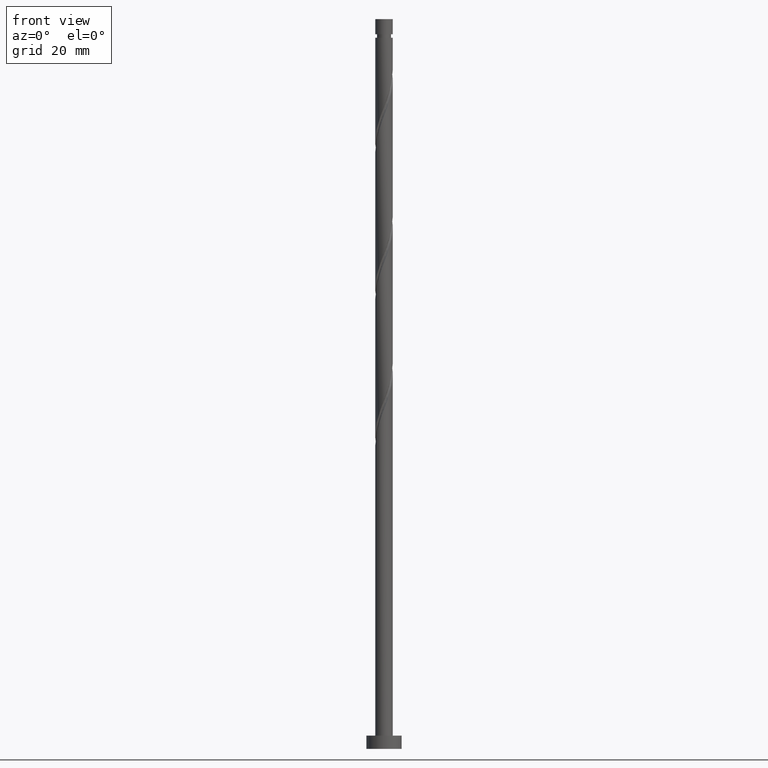
[diagram: clean part render]
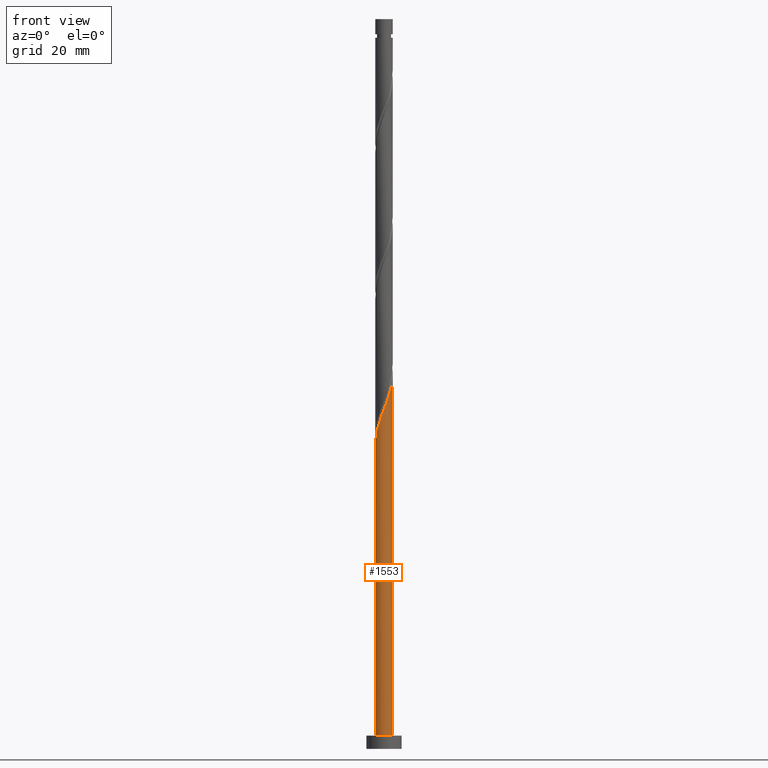
[diagram: same view with one face highlighted and labeled with its STEP entity id]
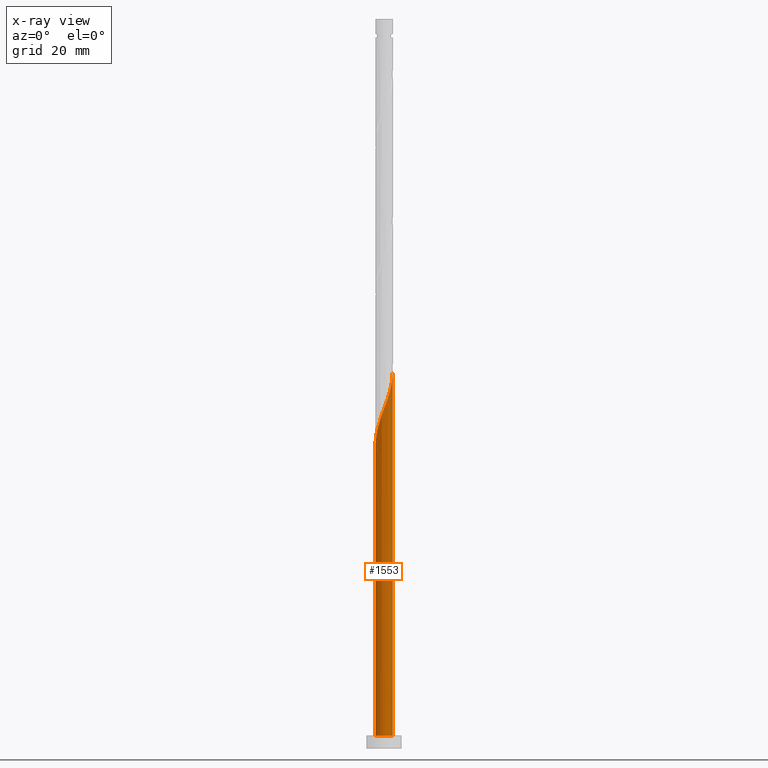
[diagram: x-ray of the same camera — body ghosted, the highlighted face saturated]
A machine part, front view. The second image highlights one B-rep face of the part: STEP entity #1553.
The next image is the same camera in x-ray: the body ghosted, the highlighted face saturated — about 0% of this face is hidden behind the body in this view.
In plain terms, the highlighted cylindrical surface (edge-blend (fillet) strip) has radius 2 mm, axis along (-0, -0, -1).
Its self-contained STEP definition (entity closure, byte-faithful):
#102 = CARTESIAN_POINT ( 'NONE',  ( -0.1228517034671596508, -1.996223298870952290, 76.83975284784916937 ) ) ;
#120 = CARTESIAN_POINT ( 'NONE',  ( 0.1399560795713515327, -2.012397032465270463, 77.53419729229361224 ) ) ;
#122 = EDGE_CURVE ( 'NONE', #1189, #1703, #1707, .T. ) ;
#139 = CARTESIAN_POINT ( 'NONE',  ( 1.324673758792282996, -1.498412303996178530, 81.00641951451585498 ) ) ;
#207 = CARTESIAN_POINT ( 'NONE',  ( 2.000000000000000000, 2.449293598294706414E-16, 165.8000000000000114 ) ) ;
#225 = CARTESIAN_POINT ( 'NONE',  ( 2.000000000000002665, -8.972270666171985530E-17, 85.49840841486135901 ) ) ;
#234 = CARTESIAN_POINT ( 'NONE',  ( 2.000000000000002665, -8.972270666171985530E-17, 85.49840841486135901 ) ) ;
#253 = CARTESIAN_POINT ( 'NONE',  ( -1.104504345536228671, -1.667354236715041127, 74.06197507007138370 ) ) ;
#262 = CARTESIAN_POINT ( 'NONE',  ( -2.000000000000003109, -1.136487617715118118E-15, 68.83174174819468760 ) ) ;
#366 = CARTESIAN_POINT ( 'NONE',  ( 0.000000000000000000, 0.000000000000000000, 165.8000000000000114 ) ) ;
#373 = CARTESIAN_POINT ( 'NONE',  ( 1.980049565276634782, -0.3856594865056718335, 84.47864173673806931 ) ) ;
#385 = CARTESIAN_POINT ( 'NONE',  ( 0.3979949748426483414, -1.960000000000003073, 78.22864173673805510 ) ) ;
#403 = CARTESIAN_POINT ( 'NONE',  ( 0.6560338701139444284, -1.907602967534735683, 78.92308618118249797 ) ) ;
#408 = CARTESIAN_POINT ( 'NONE',  ( 0.000000000000000000, 0.000000000000000000, 3.000000000000000000 ) ) ;
#410 = CARTESIAN_POINT ( 'NONE',  ( -1.672808912829666150, -1.127404036555502254, 71.97864173673806931 ) ) ;
#445 = EDGE_CURVE ( 'NONE', #1189, #669, #1678, .T. ) ;
#488 = CARTESIAN_POINT ( 'NONE',  ( 2.000000000000000000, 2.449293598294706414E-16, 3.000000000000000000 ) ) ;
#510 = CARTESIAN_POINT ( 'NONE',  ( 1.896407278838826205, -0.6353262412077200771, 83.78419729229364066 ) ) ;
#546 = DIRECTION ( 'NONE',  ( 1.000000000000000000, 0.000000000000000000, 0.000000000000000000 ) ) ;
#550 = ORIENTED_EDGE ( 'NONE', *, *, #445, .T. ) ;
#669 = VERTEX_POINT ( 'NONE', #1313 ) ;
#743 = EDGE_CURVE ( 'NONE', #669, #1203, #1434, .T. ) ;
#750 = DIRECTION ( 'NONE',  ( -0.000000000000000000, -0.000000000000000000, -1.000000000000000000 ) ) ;
#784 = DIRECTION ( 'NONE',  ( -1.000000000000000000, 0.000000000000000000, 0.000000000000000000 ) ) ;
#800 = CARTESIAN_POINT ( 'NONE',  ( -1.324015695162691131, -1.521943481029064404, 73.36753062562695504 ) ) ;
#815 = CARTESIAN_POINT ( 'NONE',  ( -0.3856594865056708343, -1.980049565276635226, 76.14530840340475493 ) ) ;
#903 = DIRECTION ( 'NONE',  ( -0.000000000000000000, -0.000000000000000000, -1.000000000000000000 ) ) ;
#909 = CARTESIAN_POINT ( 'NONE',  ( 1.996223298870952290, -0.1228517034671606500, 85.17308618118251218 ) ) ;
#1042 = CARTESIAN_POINT ( 'NONE',  ( 1.667354236715040461, -1.104504345536229781, 82.39530840340475493 ) ) ;
#1069 = CARTESIAN_POINT ( 'NONE',  ( -1.498412303996178307, -1.324673758792283218, 72.67308618118252639 ) ) ;
#1095 = ORIENTED_EDGE ( 'NONE', *, *, #743, .T. ) ;
#1172 = CARTESIAN_POINT ( 'NONE',  ( 1.521943481029064404, -1.324015695162691131, 81.70086395896031206 ) ) ;
#1189 = VERTEX_POINT ( 'NONE', #1535 ) ;
#1194 = EDGE_CURVE ( 'NONE', #1703, #1203, #1691, .T. ) ;
#1203 = VERTEX_POINT ( 'NONE', #488 ) ;
#1227 = ORIENTED_EDGE ( 'NONE', *, *, #122, .F. ) ;
#1287 = ORIENTED_EDGE ( 'NONE', *, *, #1194, .F. ) ;
#1313 = CARTESIAN_POINT ( 'NONE',  ( -2.000000000000000000, 0.000000000000000000, 3.000000000000000000 ) ) ;
#1333 = CARTESIAN_POINT ( 'NONE',  ( -0.8849929959097680987, -1.812764992401018072, 74.75641951451585498 ) ) ;
#1341 = CARTESIAN_POINT ( 'NONE',  ( -2.000000000000002665, -0.2010075630518454448, 69.36516811738397337 ) ) ;
#1353 = CARTESIAN_POINT ( 'NONE',  ( 1.127404036555501587, -1.672808912829666150, 80.31197507007144054 ) ) ;
#1434 = CIRCLE ( 'NONE', #1662, 2.000000000000000000 ) ;
#1446 = CARTESIAN_POINT ( 'NONE',  ( 2.000000000000003109, -0.06148390331534360487, 85.33524472683320994 ) ) ;
#1476 = CARTESIAN_POINT ( 'NONE',  ( 0.8917189533347230634, -1.790205940182200806, 79.61753062562694083 ) ) ;
#1485 = CARTESIAN_POINT ( 'NONE',  ( -0.6353262412077199661, -1.896407278838826205, 75.45086395896029785 ) ) ;
#1518 = AXIS2_PLACEMENT_3D ( 'NONE', #366, #903, #784 ) ;
#1524 = VECTOR ( 'NONE', #750, 1000.000000000000000 ) ;
#1535 = CARTESIAN_POINT ( 'NONE',  ( -2.000000000000003109, -1.136487617715118118E-15, 68.83174174819468760 ) ) ;
#1547 = CARTESIAN_POINT ( 'NONE',  ( -2.000000000000000000, 0.000000000000000000, 165.8000000000000114 ) ) ;
#1553 = ADVANCED_FACE ( 'NONE', ( #1706 ), #1577, .T. ) ;
#1560 = DIRECTION ( 'NONE',  ( -0.000000000000000000, -0.000000000000000000, -1.000000000000000000 ) ) ;
#1577 = CYLINDRICAL_SURFACE ( 'NONE', #1518, 2.000000000000000000 ) ;
#1585 = CARTESIAN_POINT ( 'NONE',  ( -1.790205940182200361, -0.8917189533347235075, 71.28419729229362645 ) ) ;
#1593 = CARTESIAN_POINT ( 'NONE',  ( -1.960000000000003073, -0.3979949748426484524, 69.89530840340472650 ) ) ;
#1619 = CARTESIAN_POINT ( 'NONE',  ( -1.907602967534735683, -0.6560338701139445394, 70.58975284784919779 ) ) ;
#1662 = AXIS2_PLACEMENT_3D ( 'NONE', #408, #1750, #546 ) ;
#1671 = EDGE_LOOP ( 'NONE', ( #1287, #1227, #550, #1095 ) ) ;
#1678 = LINE ( 'NONE', #1547, #1524 ) ;
#1691 = LINE ( 'NONE', #207, #1719 ) ;
#1703 = VERTEX_POINT ( 'NONE', #225 ) ;
#1706 = FACE_OUTER_BOUND ( 'NONE', #1671, .T. ) ;
#1707 =( BOUNDED_CURVE ( )  B_SPLINE_CURVE ( 2, ( #262, #1341, #1593, #1619, #1585, #410, #1069, #800, #253, #1333, #1485, #815, #102, #120, #385, #403, #1476, #1353, #139, #1172, #1042, #1715, #510, #373, #909, #1446, #234 ),
 .UNSPECIFIED., .F., .T. ) 
 B_SPLINE_CURVE_WITH_KNOTS ( ( 3, 2, 2, 2, 2, 2, 2, 2, 2, 2, 2, 2, 2, 3 ),
 ( 0.05453176698144644036, 0.06250000000000000000, 0.07291666666666662966, 0.08333333333333337034, 0.09375000000000000000, 0.1041666666666666297, 0.1145833333333333703, 0.1250000000000000000, 0.1354166666666666297, 0.1458333333333333703, 0.1562500000000000000, 0.1666666666666666297, 0.1770833333333333703, 0.1795317669814465167 ),
 .UNSPECIFIED. ) 
 CURVE ( )  GEOMETRIC_REPRESENTATION_ITEM ( )  RATIONAL_B_SPLINE_CURVE ( ( 0.9062941362546510504, 0.9031415850403555767, 0.9090909090909310430, 0.9013135103398492998, 0.9090909090909310430, 0.9013135103398492998, 0.9090909090909310430, 0.9013135103398492998, 0.9090909090909310430, 0.9013135103398492998, 0.9090909090909310430, 0.9013135103398492998, 0.9090909090909310430, 0.9013135103398492998, 0.9090909090909310430, 0.9013135103398492998, 0.9090909090909310430, 0.9013135103398492998, 0.9090909090909310430, 0.9013135103398492998, 0.9090909090909310430, 0.9013135103398492998, 0.9090909090909310430, 0.9013135103398492998, 0.9090909090909310430, 0.9072628343904245440, 0.9062941362546510504 ) ) 
 REPRESENTATION_ITEM ( '' )  );
#1715 = CARTESIAN_POINT ( 'NONE',  ( 1.812764992401017849, -0.8849929959097680987, 83.08975284784916937 ) ) ;
#1719 = VECTOR ( 'NONE', #1560, 1000.000000000000000 ) ;
#1750 = DIRECTION ( 'NONE',  ( 0.000000000000000000, 0.000000000000000000, 1.000000000000000000 ) ) ;